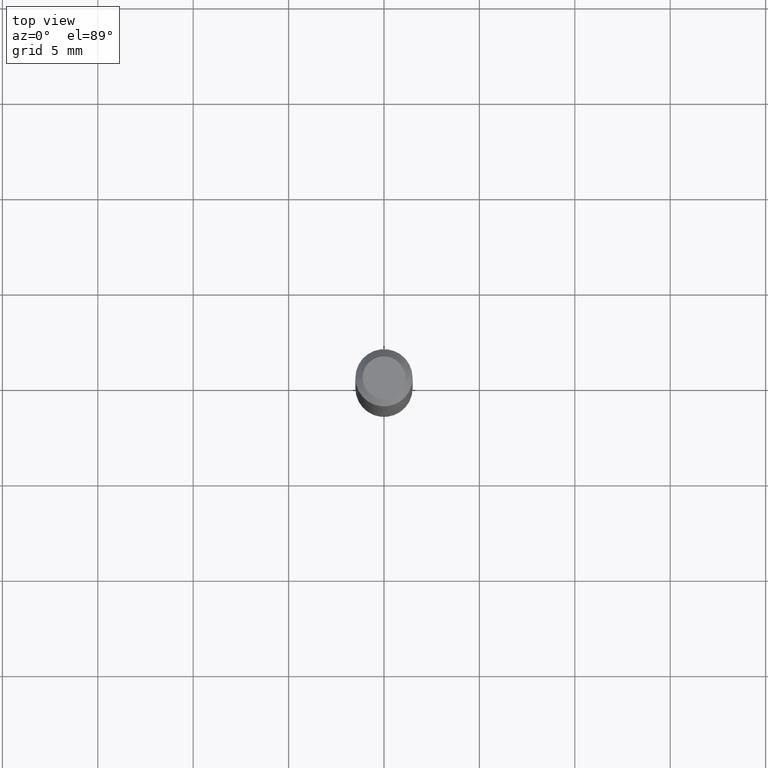
[diagram: clean part render]
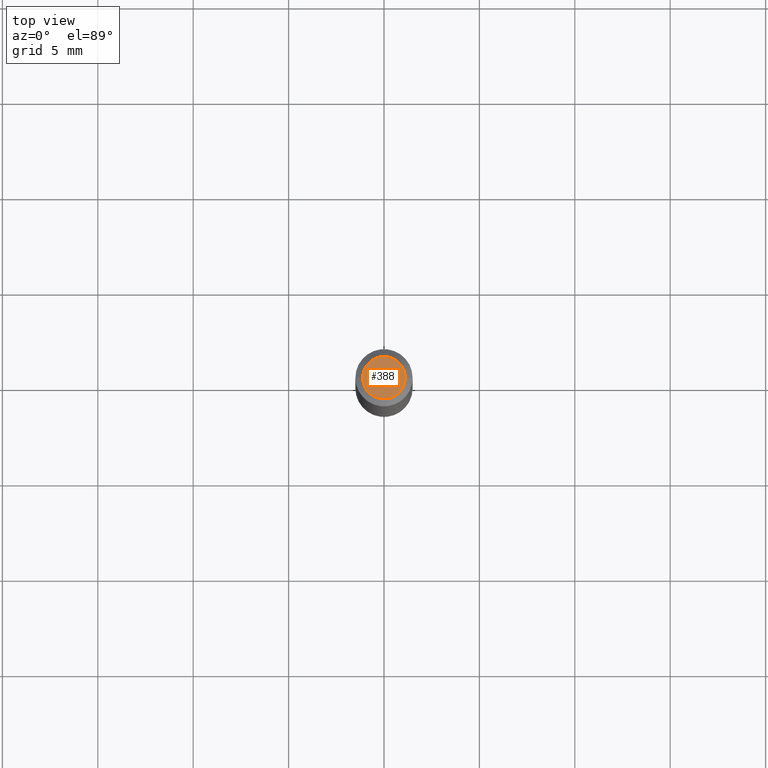
[diagram: same view with one face highlighted and labeled with its STEP entity id]
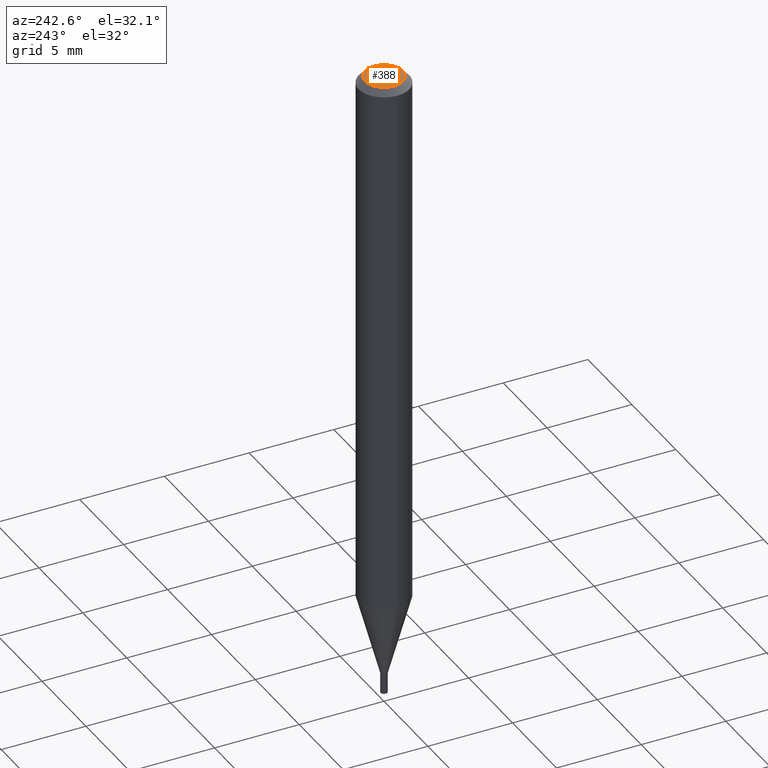
[diagram: same view with one face highlighted and labeled with its STEP entity id]
A machine part, top view. The second image highlights one B-rep face of the part: STEP entity #388.
A second angle (auxiliary view) of the same face is appended — the face is thin or edge-on in the first view.
In plain terms, the highlighted planar face has unit normal (0, -0, -1).
Its self-contained STEP definition (entity closure, byte-faithful):
#1 = AXIS2_PLACEMENT_3D ( 'NONE', #158, #79, #304 ) ;
#15 = DIRECTION ( 'NONE',  ( 1.000000000000000000, -6.982962677686265922E-15, 4.888540261209747396E-29 ) ) ;
#18 = CARTESIAN_POINT ( 'NONE',  ( 0.04404999999999999888, -3.798447818264462051E-16, -1.162416517208521811E-16 ) ) ;
#27 = CARTESIAN_POINT ( 'NONE',  ( 3.075995059520799729E-16, 0.04404999999999999888, -2.119205788364678519E-16 ) ) ;
#34 = EDGE_CURVE ( 'NONE', #233, #36, #205, .T. ) ;
#36 = VERTEX_POINT ( 'NONE', #18 ) ;
#46 = CARTESIAN_POINT ( 'NONE',  ( 2.842653332627866660E-45, -4.058555577796679728E-31, -1.162416517208545723E-16 ) ) ;
#79 = DIRECTION ( 'NONE',  ( -2.445468806185136597E-29, 3.491481338843145583E-15, 1.000000000000000000 ) ) ;
#83 = DIRECTION ( 'NONE',  ( 2.438088387897960049E-29, -3.491481338843145188E-15, -1.000000000000000000 ) ) ;
#112 = CIRCLE ( 'NONE', #164, 0.04404999999999999888 ) ;
#158 = CARTESIAN_POINT ( 'NONE',  ( 2.842653332627866660E-45, -4.058555577796679728E-31, -1.162416517208545723E-16 ) ) ;
#164 = AXIS2_PLACEMENT_3D ( 'NONE', #46, #200, #15 ) ;
#200 = DIRECTION ( 'NONE',  ( -2.445468806185136597E-29, 3.491481338843145583E-15, 1.000000000000000000 ) ) ;
#203 = DIRECTION ( 'NONE',  ( -1.000000000000000000, 6.982962677686265922E-15, -4.876176775795935793E-29 ) ) ;
#205 = CIRCLE ( 'NONE', #1, 0.04404999999999999888 ) ;
#219 = AXIS2_PLACEMENT_3D ( 'NONE', #27, #83, #203 ) ;
#233 = VERTEX_POINT ( 'NONE', #340 ) ;
#256 = ORIENTED_EDGE ( 'NONE', *, *, #34, .T. ) ;
#276 = PLANE ( 'NONE',  #219 ) ;
#304 = DIRECTION ( 'NONE',  ( 1.000000000000000000, -6.982962677686265922E-15, 4.888540261209747396E-29 ) ) ;
#316 = EDGE_CURVE ( 'NONE', #36, #233, #112, .T. ) ;
#340 = CARTESIAN_POINT ( 'NONE',  ( -0.04404999999999999888, 3.337856159934032167E-16, -1.162416517208568157E-16 ) ) ;
#388 = ADVANCED_FACE ( 'NONE', ( #421 ), #276, .F. ) ;
#406 = EDGE_LOOP ( 'NONE', ( #256, #428 ) ) ;
#421 = FACE_OUTER_BOUND ( 'NONE', #406, .T. ) ;
#428 = ORIENTED_EDGE ( 'NONE', *, *, #316, .T. ) ;